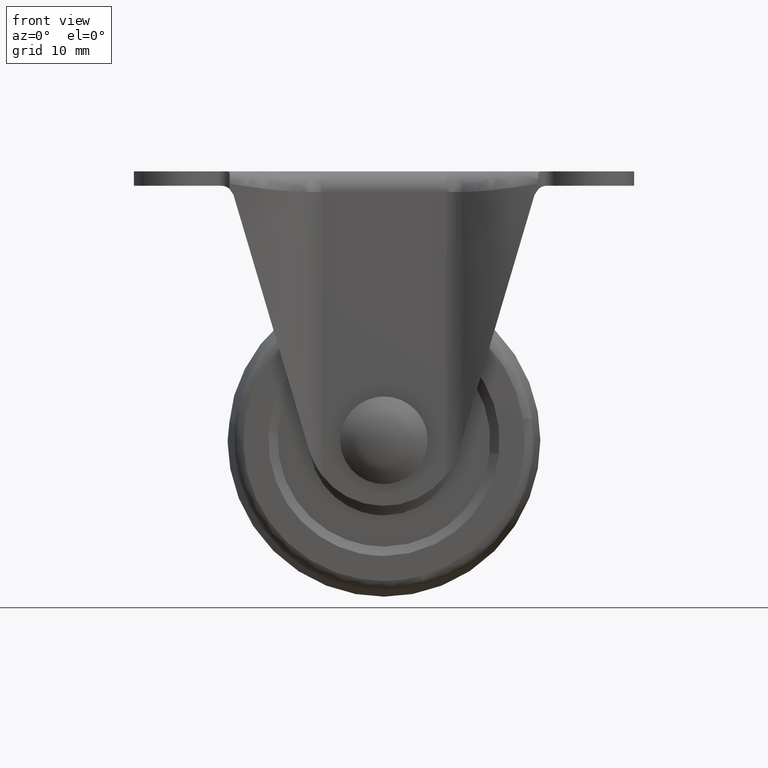
[diagram: clean part render]
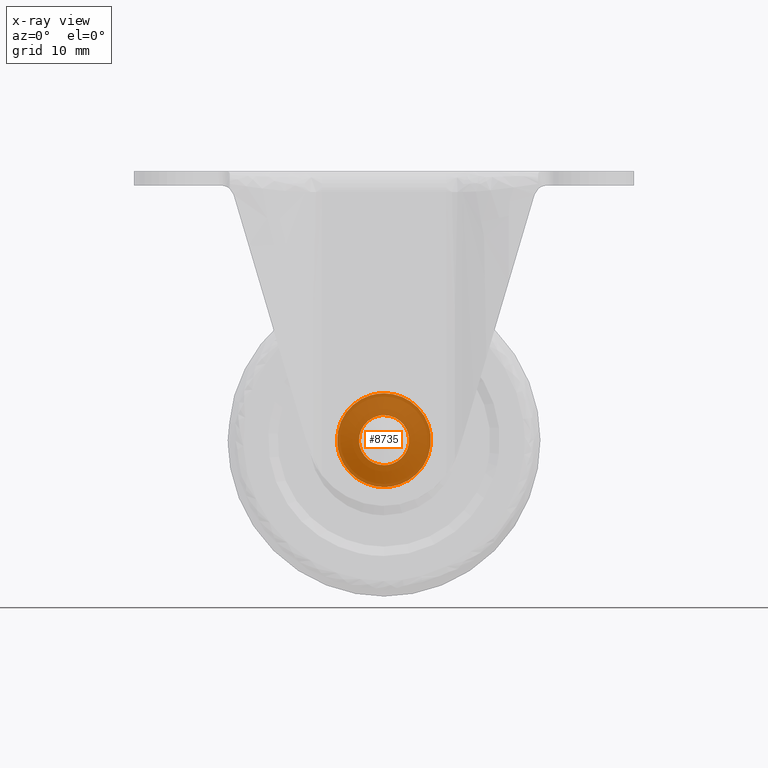
[diagram: x-ray — body ghosted, one internal face saturated and labeled with its STEP entity id]
A machine part, front view, then the same camera in x-ray: the body is ghosted and one INTERNAL B-rep face — a face not visible from any outside direction — is saturated and labeled: STEP entity #8735.
In plain terms, the highlighted face is a freeform B-spline surface patch.
Its self-contained STEP definition (entity closure, byte-faithful):
#7506=CARTESIAN_POINT('',(3.972038105450936,18.0,-42.527863061341591));
#7507=VERTEX_POINT('',#7506);
#7508=CARTESIAN_POINT('',(0.0,18.0,-47.0));
#7509=VERTEX_POINT('',#7508);
#7510=CARTESIAN_POINT('',(3.972038105450936,18.0,-42.527863061341591));
#7511=CARTESIAN_POINT('',(4.0,18.000000000000004,-42.763103521360648));
#7512=CARTESIAN_POINT('',(4.0,18.0,-43.0));
#7513=CARTESIAN_POINT('',(4.000000000000000,18.000000000000007,-47.000000000000007));
#7514=CARTESIAN_POINT('',(0.0,18.0,-47.0));
#7522=(BOUNDED_CURVE()B_SPLINE_CURVE(2,(#7510,#7511,#7512,#7513,#7514),.UNSPECIFIED.,.F.,.U.)B_SPLINE_CURVE_WITH_KNOTS((3,2,3),(0.229562473512975,0.250000000000000,0.500000000000000),.UNSPECIFIED.)CURVE()GEOMETRIC_REPRESENTATION_ITEM()RATIONAL_B_SPLINE_CURVE((0.956026754182653,0.976055948330520,1.0,0.707106781186548,1.0))REPRESENTATION_ITEM(''));
#7523=EDGE_CURVE('',#7507,#7509,#7522,.T.);
#7564=CARTESIAN_POINT('',(-3.992539193674742,18.0,-43.244194158347483));
#7565=VERTEX_POINT('',#7564);
#7571=CARTESIAN_POINT('',(0.0,18.0,-47.0));
#7572=CARTESIAN_POINT('',(-3.762824267229894,18.0,-47.0));
#7573=CARTESIAN_POINT('',(-3.992539193674741,18.000000000000004,-43.244194158347483));
#7581=(BOUNDED_CURVE()B_SPLINE_CURVE(2,(#7571,#7572,#7573),.UNSPECIFIED.,.F.,.U.)B_SPLINE_CURVE_WITH_KNOTS((3,3),(0.500000000000000,0.739332962223986),.UNSPECIFIED.)CURVE()GEOMETRIC_REPRESENTATION_ITEM()RATIONAL_B_SPLINE_CURVE((1.0,0.719603993304233,0.976072041634662))REPRESENTATION_ITEM(''));
#7582=EDGE_CURVE('',#7509,#7565,#7581,.T.);
#7605=CARTESIAN_POINT('',(0.0,18.0,-38.999999999999993));
#7606=VERTEX_POINT('',#7605);
#7607=CARTESIAN_POINT('',(0.0,18.0,-38.999999999999993));
#7608=CARTESIAN_POINT('',(3.552698103748957,18.0,-38.999999999999979));
#7609=CARTESIAN_POINT('',(3.972038105450936,18.0,-42.527863061341591));
#7617=(BOUNDED_CURVE()B_SPLINE_CURVE(2,(#7607,#7608,#7609),.UNSPECIFIED.,.F.,.U.)B_SPLINE_CURVE_WITH_KNOTS((3,3),(0.0,0.229562473512975),.UNSPECIFIED.)CURVE()GEOMETRIC_REPRESENTATION_ITEM()RATIONAL_B_SPLINE_CURVE((1.0,0.731050832856028,0.956026754182653))REPRESENTATION_ITEM(''));
#7618=EDGE_CURVE('',#7606,#7507,#7617,.T.);
#7620=CARTESIAN_POINT('',(-3.992539193674742,18.000000000000004,-43.244194158347490));
#7621=CARTESIAN_POINT('',(-4.0,18.0,-43.122211053402992));
#7622=CARTESIAN_POINT('',(-4.0,18.0,-43.0));
#7623=CARTESIAN_POINT('',(-4.000000000000000,18.000000000000007,-38.999999999999993));
#7624=CARTESIAN_POINT('',(0.0,18.0,-38.999999999999993));
#7632=(BOUNDED_CURVE()B_SPLINE_CURVE(2,(#7620,#7621,#7622,#7623,#7624),.UNSPECIFIED.,.F.,.U.)B_SPLINE_CURVE_WITH_KNOTS((3,2,3),(0.739332962223985,0.750000000000000,1.0),.UNSPECIFIED.)CURVE()GEOMETRIC_REPRESENTATION_ITEM()RATIONAL_B_SPLINE_CURVE((0.976072041634660,0.987502787882313,1.0,0.707106781186548,1.0))REPRESENTATION_ITEM(''));
#7633=EDGE_CURVE('',#7565,#7606,#7632,.T.);
#7878=CARTESIAN_POINT('',(7.447571447720777,18.0,-42.114743240017773));
#7879=VERTEX_POINT('',#7878);
#7880=CARTESIAN_POINT('',(0.0,18.0,-50.499999999999993));
#7881=VERTEX_POINT('',#7880);
#7882=CARTESIAN_POINT('',(7.447571447720777,18.000000000000007,-42.114743240017766));
#7883=CARTESIAN_POINT('',(7.500000000000000,18.000000000000004,-42.555819102553535));
#7884=CARTESIAN_POINT('',(7.500000000000000,18.0,-43.0));
#7885=CARTESIAN_POINT('',(7.500000000000000,18.000000000000007,-50.499999999999993));
#7886=CARTESIAN_POINT('',(0.0,18.0,-50.499999999999993));
#7894=(BOUNDED_CURVE()B_SPLINE_CURVE(2,(#7882,#7883,#7884,#7885,#7886),.UNSPECIFIED.,.F.,.U.)B_SPLINE_CURVE_WITH_KNOTS((3,2,3),(0.229562473513078,0.250000000000000,0.500000000000000),.UNSPECIFIED.)CURVE()GEOMETRIC_REPRESENTATION_ITEM()RATIONAL_B_SPLINE_CURVE((0.956026754182856,0.976055948330641,1.0,0.707106781186547,1.0))REPRESENTATION_ITEM(''));
#7895=EDGE_CURVE('',#7879,#7881,#7894,.T.);
#7897=CARTESIAN_POINT('',(-7.486010988161311,18.0,-43.457864046555400));
#7898=VERTEX_POINT('',#7897);
#7899=CARTESIAN_POINT('',(0.0,18.0,-50.499999999999993));
#7900=CARTESIAN_POINT('',(-7.055295501709706,18.0,-50.499999999999993));
#7901=CARTESIAN_POINT('',(-7.486010988161312,17.999999999999996,-43.457864046555400));
#7909=(BOUNDED_CURVE()B_SPLINE_CURVE(2,(#7899,#7900,#7901),.UNSPECIFIED.,.F.,.U.)B_SPLINE_CURVE_WITH_KNOTS((3,3),(0.500000000000000,0.739332962239942),.UNSPECIFIED.)CURVE()GEOMETRIC_REPRESENTATION_ITEM()RATIONAL_B_SPLINE_CURVE((1.0,0.719603993285539,0.976072041668859))REPRESENTATION_ITEM(''));
#7910=EDGE_CURVE('',#7881,#7898,#7909,.T.);
#7977=CARTESIAN_POINT('',(0.0,18.0,-35.500000000000000));
#7978=VERTEX_POINT('',#7977);
#7979=CARTESIAN_POINT('',(0.0,18.0,-35.500000000000000));
#7980=CARTESIAN_POINT('',(6.661308944533396,18.000000000000004,-35.499999999999993));
#7981=CARTESIAN_POINT('',(7.447571447720777,18.000000000000007,-42.114743240017766));
#7989=(BOUNDED_CURVE()B_SPLINE_CURVE(2,(#7979,#7980,#7981),.UNSPECIFIED.,.F.,.U.)B_SPLINE_CURVE_WITH_KNOTS((3,3),(0.0,0.229562473513078),.UNSPECIFIED.)CURVE()GEOMETRIC_REPRESENTATION_ITEM()RATIONAL_B_SPLINE_CURVE((1.0,0.731050832855907,0.956026754182856))REPRESENTATION_ITEM(''));
#7990=EDGE_CURVE('',#7978,#7879,#7989,.T.);
#8024=CARTESIAN_POINT('',(-7.486010988161311,18.0,-43.457864046555400));
#8025=CARTESIAN_POINT('',(-7.499999999999999,18.0,-43.229145724783507));
#8026=CARTESIAN_POINT('',(-7.500000000000000,18.0,-43.0));
#8027=CARTESIAN_POINT('',(-7.500000000000000,18.000000000000007,-35.499999999999993));
#8028=CARTESIAN_POINT('',(0.0,18.0,-35.500000000000000));
#8036=(BOUNDED_CURVE()B_SPLINE_CURVE(2,(#8024,#8025,#8026,#8027,#8028),.UNSPECIFIED.,.F.,.U.)B_SPLINE_CURVE_WITH_KNOTS((3,2,3),(0.739332962239941,0.750000000000000,1.0),.UNSPECIFIED.)CURVE()GEOMETRIC_REPRESENTATION_ITEM()RATIONAL_B_SPLINE_CURVE((0.976072041668857,0.987502787901007,1.0,0.707106781186547,1.0))REPRESENTATION_ITEM(''));
#8037=EDGE_CURVE('',#7898,#7978,#8036,.T.);
#8718=CARTESIAN_POINT('',(-8.249067709211959,18.0,-51.249249970927082));
#8719=CARTESIAN_POINT('',(-8.249067709211959,18.0,-34.750749626741559));
#8720=CARTESIAN_POINT('',(8.249113574986113,18.0,-51.249249970927082));
#8721=CARTESIAN_POINT('',(8.249113574986113,18.0,-34.750749626741559));
#8722=B_SPLINE_SURFACE_WITH_KNOTS('',1,1,((#8718,#8720),(#8719,#8721)),.UNSPECIFIED.,.F.,.F.,.U.,(2,2),(2,2),(0.0,16.498500344185519),(0.0,16.498181284198068),.UNSPECIFIED.);
#8723=ORIENTED_EDGE('',*,*,#7910,.F.);
#8724=ORIENTED_EDGE('',*,*,#7895,.F.);
#8725=ORIENTED_EDGE('',*,*,#7990,.F.);
#8726=ORIENTED_EDGE('',*,*,#8037,.F.);
#8727=EDGE_LOOP('',(#8723,#8724,#8725,#8726));
#8728=FACE_OUTER_BOUND('',#8727,.T.);
#8729=ORIENTED_EDGE('',*,*,#7582,.T.);
#8730=ORIENTED_EDGE('',*,*,#7633,.T.);
#8731=ORIENTED_EDGE('',*,*,#7618,.T.);
#8732=ORIENTED_EDGE('',*,*,#7523,.T.);
#8733=EDGE_LOOP('',(#8729,#8730,#8731,#8732));
#8734=FACE_BOUND('',#8733,.T.);
#8735=ADVANCED_FACE('',(#8728,#8734),#8722,.F.);